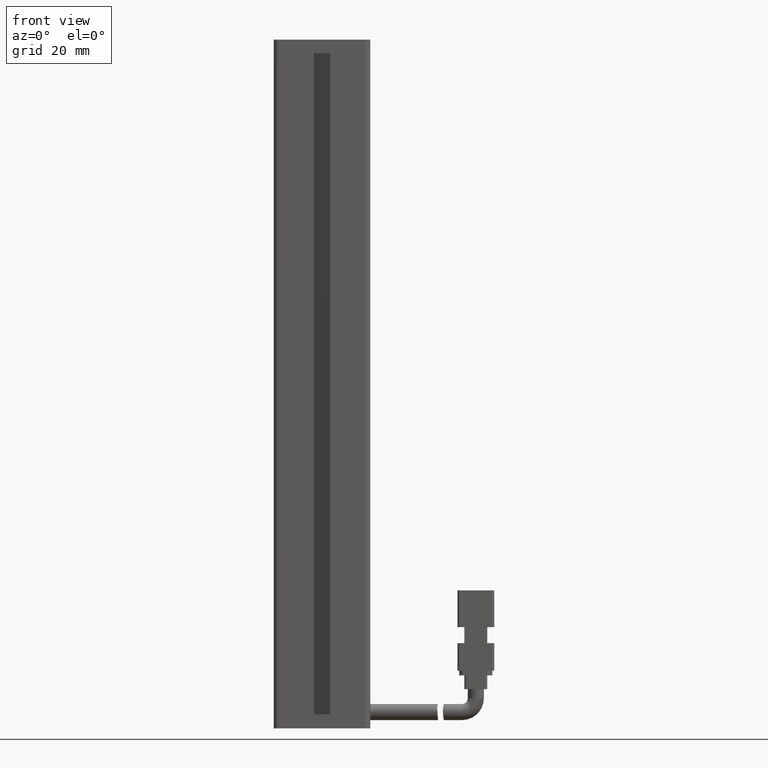
[diagram: clean part render]
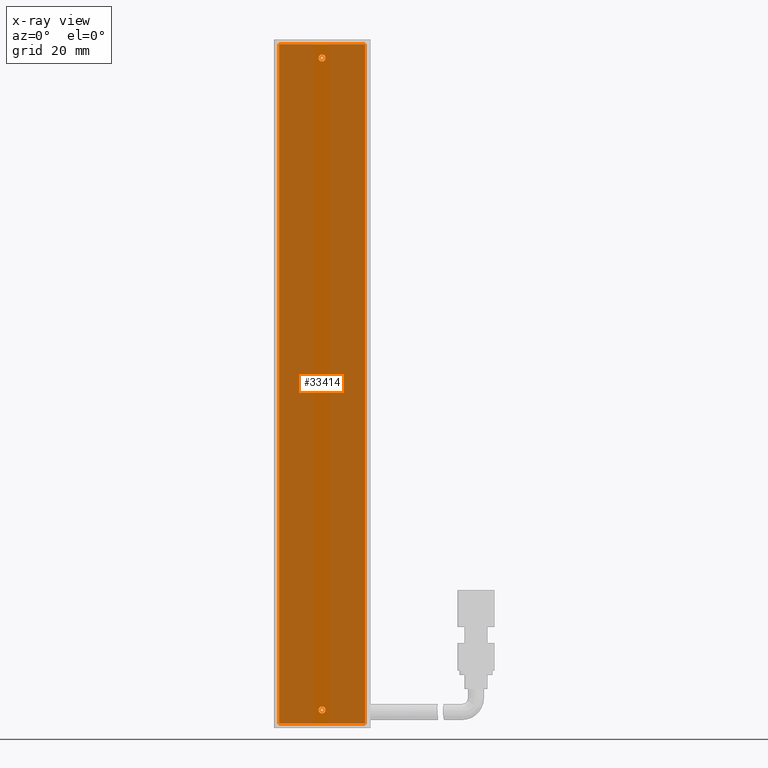
[diagram: x-ray — body ghosted, one internal face saturated and labeled with its STEP entity id]
A machine part, front view, then the same camera in x-ray: the body is ghosted and one INTERNAL B-rep face — a face not visible from any outside direction — is saturated and labeled: STEP entity #33414.
In plain terms, the highlighted planar face has unit normal (-0, 1, 0).
Its self-contained STEP definition (entity closure, byte-faithful):
#544 = ORIENTED_EDGE ( 'NONE', *, *, #11666, .F. ) ;
#1062 = DIRECTION ( 'NONE',  ( -1.548860246407863500E-017, -0.0000000000000000000, -1.000000000000000000 ) ) ;
#3259 = CARTESIAN_POINT ( 'NONE',  ( 50.27537974683541900, 32.09073232304837100, -189.0000000000000000 ) ) ;
#3693 = DIRECTION ( 'NONE',  ( -0.0000000000000000000, 1.000000000000000000, 0.0000000000000000000 ) ) ;
#3746 = EDGE_CURVE ( 'NONE', #22165, #31309, #26084, .T. ) ;
#3935 = CARTESIAN_POINT ( 'NONE',  ( 50.27537974683542600, 32.09073232304837100, -41.00000000000000700 ) ) ;
#4081 = VECTOR ( 'NONE', #5251, 1000.000000000000000 ) ;
#4298 = DIRECTION ( 'NONE',  ( -0.0000000000000000000, -1.000000000000000000, -0.0000000000000000000 ) ) ;
#4873 = CARTESIAN_POINT ( 'NONE',  ( 40.92537974683541100, 32.09073232304837100, -186.0000000000000000 ) ) ;
#5251 = DIRECTION ( 'NONE',  ( 1.548860246407863500E-017, 0.0000000000000000000, 1.000000000000000000 ) ) ;
#7384 = PLANE ( 'NONE',  #38309 ) ;
#7989 = EDGE_LOOP ( 'NONE', ( #19048, #19486, #32761, #11511 ) ) ;
#9076 = EDGE_LOOP ( 'NONE', ( #40910, #25789 ) ) ;
#9483 = EDGE_CURVE ( 'NONE', #28869, #30483, #40346, .T. ) ;
#9668 = CARTESIAN_POINT ( 'NONE',  ( 40.92537974683541800, 32.09073232304837100, -44.00000000000001400 ) ) ;
#10039 = CARTESIAN_POINT ( 'NONE',  ( 31.57537974683540600, 32.09073232304837100, -189.0000000000000000 ) ) ;
#10639 = CARTESIAN_POINT ( 'NONE',  ( 50.27537974683542600, 32.09073232304837100, -41.00000000000000700 ) ) ;
#11377 = DIRECTION ( 'NONE',  ( 0.0000000000000000000, 0.0000000000000000000, 1.000000000000000000 ) ) ;
#11511 = ORIENTED_EDGE ( 'NONE', *, *, #24317, .F. ) ;
#11666 = EDGE_CURVE ( 'NONE', #30483, #28869, #32346, .T. ) ;
#11835 = LINE ( 'NONE', #3259, #12843 ) ;
#12523 = DIRECTION ( 'NONE',  ( -0.0000000000000000000, -1.000000000000000000, -0.0000000000000000000 ) ) ;
#12843 = VECTOR ( 'NONE', #12902, 1000.000000000000000 ) ;
#12902 = DIRECTION ( 'NONE',  ( -1.000000000000000000, -0.0000000000000000000, 1.548860246407863500E-017 ) ) ;
#13153 = FACE_BOUND ( 'NONE', #9076, .T. ) ;
#13487 = VERTEX_POINT ( 'NONE', #17603 ) ;
#15043 = LINE ( 'NONE', #3935, #33441 ) ;
#15101 = DIRECTION ( 'NONE',  ( 0.0000000000000000000, 0.0000000000000000000, 1.000000000000000000 ) ) ;
#15200 = FACE_OUTER_BOUND ( 'NONE', #7989, .T. ) ;
#15394 = CARTESIAN_POINT ( 'NONE',  ( 40.92537974683541800, 32.09073232304837100, -44.00000000000001400 ) ) ;
#15487 = CARTESIAN_POINT ( 'NONE',  ( 40.92537974683541100, 32.09073232304837100, -186.7500000000000000 ) ) ;
#15858 = CARTESIAN_POINT ( 'NONE',  ( 40.92537974683541100, 32.09073232304837100, -185.2500000000000000 ) ) ;
#17603 = CARTESIAN_POINT ( 'NONE',  ( 31.57537974683542000, 32.09073232304837100, -41.00000000000000700 ) ) ;
#18853 = DIRECTION ( 'NONE',  ( -0.0000000000000000000, -1.000000000000000000, -0.0000000000000000000 ) ) ;
#19048 = ORIENTED_EDGE ( 'NONE', *, *, #41056, .F. ) ;
#19486 = ORIENTED_EDGE ( 'NONE', *, *, #28972, .F. ) ;
#19953 = DIRECTION ( 'NONE',  ( 0.0000000000000000000, 0.0000000000000000000, 1.000000000000000000 ) ) ;
#20405 = LINE ( 'NONE', #21508, #4081 ) ;
#21508 = CARTESIAN_POINT ( 'NONE',  ( 31.57537974683541300, 32.09073232304837100, -41.00000000000000700 ) ) ;
#22165 = VERTEX_POINT ( 'NONE', #29461 ) ;
#22435 = CARTESIAN_POINT ( 'NONE',  ( 40.92537974683541100, 32.09073232304837100, -186.0000000000000000 ) ) ;
#22547 = VERTEX_POINT ( 'NONE', #25180 ) ;
#22719 = DIRECTION ( 'NONE',  ( 0.0000000000000000000, 0.0000000000000000000, 1.000000000000000000 ) ) ;
#23839 = DIRECTION ( 'NONE',  ( 1.000000000000000000, 0.0000000000000000000, -1.548860246407863500E-017 ) ) ;
#24060 = LINE ( 'NONE', #30950, #36231 ) ;
#24317 = EDGE_CURVE ( 'NONE', #13487, #38325, #24060, .T. ) ;
#25180 = CARTESIAN_POINT ( 'NONE',  ( 50.27537974683540500, 32.09073232304837100, -189.0000000000000000 ) ) ;
#25789 = ORIENTED_EDGE ( 'NONE', *, *, #31197, .F. ) ;
#26084 = CIRCLE ( 'NONE', #32225, 0.7500000000000006700 ) ;
#28869 = VERTEX_POINT ( 'NONE', #15487 ) ;
#28972 = EDGE_CURVE ( 'NONE', #22547, #33913, #11835, .T. ) ;
#29461 = CARTESIAN_POINT ( 'NONE',  ( 40.92537974683541800, 32.09073232304837100, -43.25000000000001400 ) ) ;
#30072 = CARTESIAN_POINT ( 'NONE',  ( 40.92537974683541800, 32.09073232304837100, -44.75000000000001400 ) ) ;
#30483 = VERTEX_POINT ( 'NONE', #15858 ) ;
#30950 = CARTESIAN_POINT ( 'NONE',  ( 50.27537974683542600, 32.09073232304837100, -41.00000000000000700 ) ) ;
#31197 = EDGE_CURVE ( 'NONE', #31309, #22165, #31944, .T. ) ;
#31309 = VERTEX_POINT ( 'NONE', #30072 ) ;
#31725 = AXIS2_PLACEMENT_3D ( 'NONE', #4873, #4298, #11377 ) ;
#31944 = CIRCLE ( 'NONE', #37358, 0.7500000000000006700 ) ;
#32225 = AXIS2_PLACEMENT_3D ( 'NONE', #15394, #18853, #15101 ) ;
#32346 = CIRCLE ( 'NONE', #40104, 0.7500000000000006700 ) ;
#32761 = ORIENTED_EDGE ( 'NONE', *, *, #39785, .F. ) ;
#33414 = ADVANCED_FACE ( 'NONE', ( #15200, #13153, #38185 ), #7384, .F. ) ;
#33441 = VECTOR ( 'NONE', #1062, 1000.000000000000000 ) ;
#33566 = CARTESIAN_POINT ( 'NONE',  ( 50.27537974683542600, 32.09073232304837100, -41.00000000000000700 ) ) ;
#33913 = VERTEX_POINT ( 'NONE', #10039 ) ;
#35626 = DIRECTION ( 'NONE',  ( -0.0000000000000000000, -1.000000000000000000, -0.0000000000000000000 ) ) ;
#35646 = EDGE_LOOP ( 'NONE', ( #544, #36028 ) ) ;
#36028 = ORIENTED_EDGE ( 'NONE', *, *, #9483, .F. ) ;
#36231 = VECTOR ( 'NONE', #23839, 1000.000000000000000 ) ;
#37358 = AXIS2_PLACEMENT_3D ( 'NONE', #9668, #35626, #19953 ) ;
#38185 = FACE_BOUND ( 'NONE', #35646, .T. ) ;
#38309 = AXIS2_PLACEMENT_3D ( 'NONE', #10639, #3693, #39832 ) ;
#38325 = VERTEX_POINT ( 'NONE', #33566 ) ;
#39785 = EDGE_CURVE ( 'NONE', #38325, #22547, #15043, .T. ) ;
#39832 = DIRECTION ( 'NONE',  ( 1.548860246407863500E-017, 0.0000000000000000000, 1.000000000000000000 ) ) ;
#40104 = AXIS2_PLACEMENT_3D ( 'NONE', #22435, #12523, #22719 ) ;
#40346 = CIRCLE ( 'NONE', #31725, 0.7500000000000006700 ) ;
#40910 = ORIENTED_EDGE ( 'NONE', *, *, #3746, .F. ) ;
#41056 = EDGE_CURVE ( 'NONE', #33913, #13487, #20405, .T. ) ;